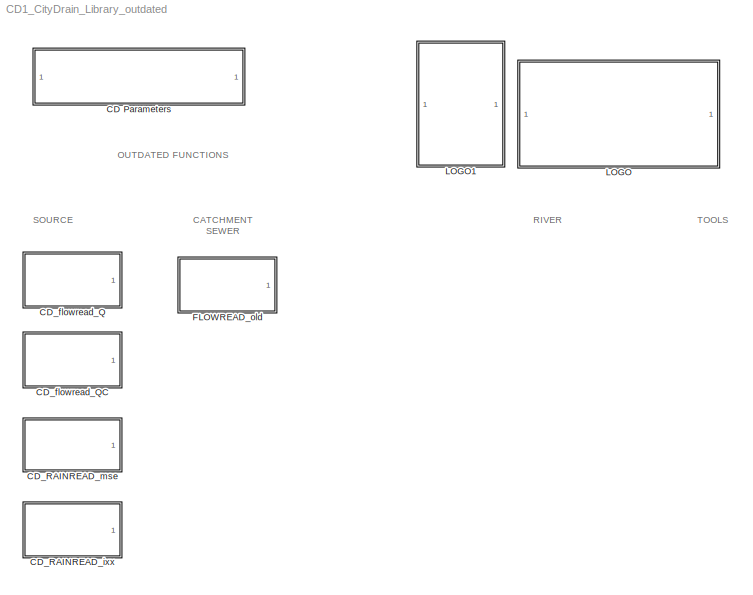
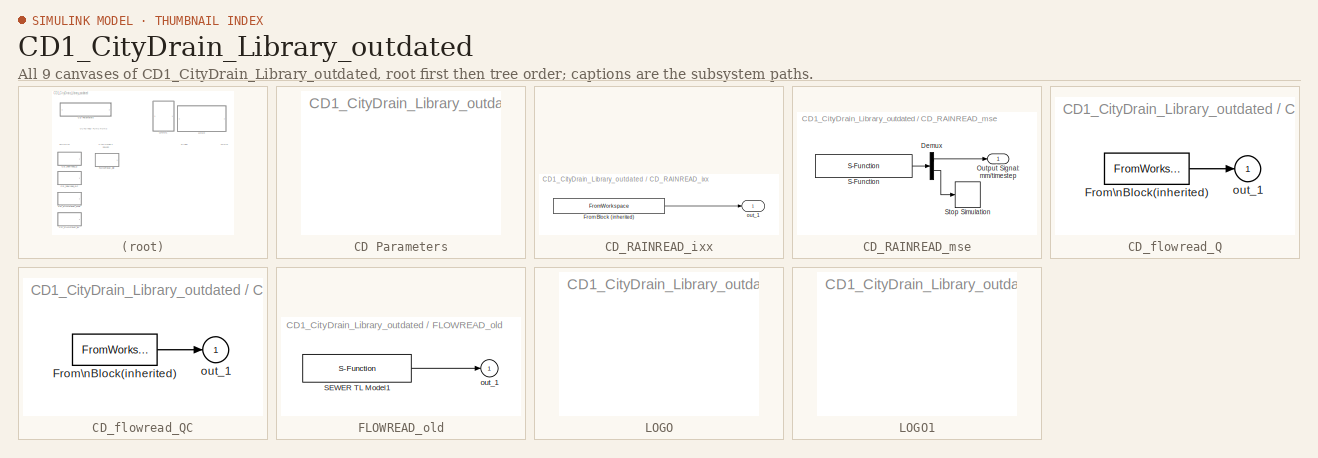
[diagram: thumbnail index - all 9 canvases of the model, root first then tree order]
MODEL CD1_CityDrain_Library_outdated
KIND model
CONFIG AbsTol = auto
CONFIG FixedStep = 300
CONFIG MaxStep = auto
CONFIG MinStep = auto
CONFIG RelTol = 1e-3
CONFIG Solver = FixedStepDiscrete
CONFIG SolverMode = Auto
CONFIG StartTime = 0
CONFIG StopTime = 36000
BLOCK [SubSystem] CD Parameters
  MaskCallbackString = ||
  MaskDescription = Block that sets the global parameters required in City Drain 1.0. Following paramters are set without user's input:\n\n- 'Solver' --> 'FixedStepDiscrete'\n- 'TimeSaveName' --> 'cd_time'\n- 'Decimation' --> '1'\n- 'LimitDataPoints' -->  'off'
  MaskDisplay = \nplot(0,0,100,100);\n\ntext(50,65,'CITY DRAIN','HorizontalAlignment','center');\ntext(50,35,'PARAMETERS','HorizontalAlignment','center');\n\n\nimage(imread('CityDrain_SimParam.jpg'))\n\n
  MaskEnableString = on,on,on
  MaskIconFrame = on
  MaskIconOpaque = on
  MaskIconRotate = none
  MaskIconUnits = autoscale
  MaskInitialization = % toplevel systems' name --> Plant file name;\ntls=bdroot(gcb); \nset_param(tls, 'Solver', 'FixedStepDiscrete'); \nset_param(tls, 'TimeSaveName', 'cd_time');\nset_param(tls, 'Decimation', '1');\nset_param(tls, 'LimitDataPoints', 'off');\nset_param(tls, 'ScreenColor', 'white');\n\ntstep_char=num2str(t_step); % Setting the discrete time step\nset_param(tls, 'FixedStep', tstep_char); \n\ntstart_char=...<+182ch>
  MaskPromptString = Sampling Time [s]|Start Time [s]|Stop Time [s]
  MaskStyleString = edit,edit,edit
  MaskToolTipString = on,on,on
  MaskTunableValueString = on,on,on
  MaskType = City Drain 1.0 - Simulation parameters
  MaskValueString = 300|0|36000
  MaskVarAliasString = ,,
  MaskVariables = t_step=@1;t_start=@2;t_stop=@3;
  MaskVisibilityString = on,on,on
  Ports = []
  TreatAsAtomicUnit = off
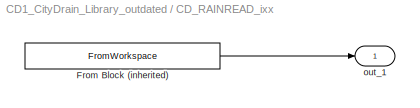
BLOCK [SubSystem] CD_RAINREAD_ixx
  MaskDescription = Read raindata from ASCII File in ixx format. \n\nTimesteps in the data must match the simulation time steps !!\n\nUsed function:\nCD1_mfun_rainread_ixx.m
  MaskDisplay = plot(0,0,100,100);\ntext(35,75,'ixx-format');\ntext(60,40,'RAIN');\ntext(60,20,'READ');\n\nplot(\n[5 10 10 15 15 20 20 25 25 30 30 40 40 45],\n[0 0 20 20 40 40 60 60 30 30 0 0 0 0]+20);
  MaskEnableString = on
  MaskIconFrame = on
  MaskIconOpaque = on
  MaskIconRotate = none
  MaskIconUnits = autoscale
  MaskInitialization = % reading the toplevel systems' name \n% --> Plant file name;\ntls=bdroot(gcb); \n% Obtaining the fixed sampling time\nt_samp_char=get_param(tls, 'FixedStep');\n% Convertion to numeric value\nt_sample = str2num(t_samp_char); \n
  MaskPromptString = Inputfile
  MaskStyleString = edit
  MaskToolTipString = on
  MaskTunableValueString = on
  MaskType = Rain Read: ixx-format
  MaskValueString = 'Rain_ixx_1980_2m_summer.ixx'
  MaskVariables = file0=@1;
  MaskVisibilityString = on
  Ports = [0, 1]
  ShowPortLabels = off
  TreatAsAtomicUnit = off
BLOCK [FromWorkspace] CD_RAINREAD_ixx/From Block  (inherited)
  OutputAfterFinalValue = Setting to zero
  SampleTime = t_sample
  VariableName = CD1_mfun_rainread_ixx_old(file0)
BLOCK [Outport] CD_RAINREAD_ixx/out_1
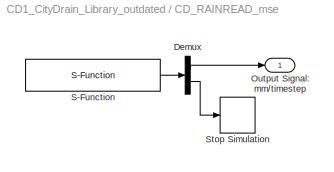
BLOCK [SubSystem] CD_RAINREAD_mse
  MaskDescription = Reads rain data from the specified  file in mse - format (modified DHI Mouse format).\nPrecipitation given in [1000*mm/sec] is converted to discrete volumetric values in [mm/timestep]. Simulation is stopped with last recorded precipitation. \n\nTimesteps in the data must match the simulation time steps !!\n\nRequired time steps for sampling are inherited from global setting.
  MaskDisplay = plot(0,0,100,100);\ntext(35,75,'mse-format');\ntext(60,40,'RAIN');\ntext(60,20,'READ');\n\nplot(\n[5 10 10 15 15 20 20 25 25 30 30 40 40 45],\n[0 0 20 20 40 40 60 60 30 30 0 0 0 0]+20);
  MaskEnableString = on
  MaskIconFrame = on
  MaskIconOpaque = on
  MaskIconRotate = none
  MaskIconUnits = autoscale
  MaskInitialization = % reading the toplevel systems' name \n% --> Plant file name;\ntls=bdroot(gcb); \n% Obtaining the fixed sampling time\nt_samp_char=get_param(tls, 'FixedStep');\n% Convertion to numeric value\ntstep = str2num(t_samp_char);
  MaskPromptString = File Name 'Raindata.mse'
  MaskStyleString = edit
  MaskToolTipString = on
  MaskTunableValueString = on
  MaskType = RainRead: mse-format
  MaskValueString = 'Rain_mse_1981.mse'
  MaskVariables = filename=@1;
  MaskVisibilityString = on
  Ports = [0, 1]
  TreatAsAtomicUnit = off
BLOCK [Demux] CD_RAINREAD_mse/Demux
  Outputs = 2
  Ports = [1, 2]
BLOCK [Outport] CD_RAINREAD_mse/Output Signal: mm//timestep
BLOCK [S-Function] CD_RAINREAD_mse/S-Function
  FunctionName = CD1_sfun_rainread_mse_old
  MaskIconFrame = on
  MaskIconOpaque = on
  MaskIconRotate = none
  MaskIconUnits = autoscale
  Parameters = filename,tstep
  Ports = [0, 1]
BLOCK [Stop] CD_RAINREAD_mse/Stop Simulation
BLOCK [SubSystem] CD_flowread_Q
  MaskDescription = Reads flowdata (Q) from ascii file. \n\nTimesteps in the data must match the simulation time steps !!\n\nUsed function: CD1_mfun_flowread_Q.m
  MaskDisplay = plot(-x/z*0.1,(n-0.2)*m,x+x/z*0.1,m+m/10,table(:,1),table(:,h(2)),x/z*[-0.1,0.05],[n*m,(n-0.2)*m])
  MaskEnableString = on
  MaskIconFrame = on
  MaskIconOpaque = on
  MaskIconRotate = none
  MaskIconUnits = autoscale
  MaskInitialization = table=CD1_mfun_flowread_Q_old(table0); \nh=size(table);m=max(table(:,h(2)));\nn=min(table(:,h(2)))/(m+eps);x=max(table(:,1));\nz=1.643;\n\n% reading the toplevel systems' name \n% --> Plant file name;\ntls=bdroot(gcb); \n% Obtaining the fixed sampling time\nt_samp_char=get_param(tls, 'FixedStep');\n% Convertion to numeric value\nt_sample = str2num(t_samp_char);
  MaskPromptString = File cotaining matrix of hydrograph
  MaskStyleString = edit
  MaskToolTipString = on
  MaskTunableValueString = on
  MaskType = CD1_mfun_flowread_Q.m
  MaskValueString = 'Input_Flow_Q_01.txt'
  MaskVariables = table0=@1;
  MaskVisibilityString = on
  Ports = [0, 1]
  ShowPortLabels = off
  TreatAsAtomicUnit = off
BLOCK [FromWorkspace] CD_flowread_Q/From\nBlock(inherited)
  Interpolate = off
  OutputAfterFinalValue = Setting to zero
  SampleTime = t_sample
  VariableName = table
BLOCK [Outport] CD_flowread_Q/out_1
BLOCK [SubSystem] CD_flowread_QC
  MaskCallbackString = |
  MaskDescription = Reads flowdata (Q) and substance concentration (Ci) associated from ascii file. \n\nTimesteps in the data must match the simulation time steps !!\n\nUsed function: CD1_mfun_flowread_QC.m
  MaskDisplay = \nplot(0,0,100,100);\n\ntext(20,30,'Flowread');\n\ntext(20,10,'Q and C');\n\n\nplot(\n[5 20 20 30 30 40 40 50 50 60 60 70 70 70],\n[0 0 10 10 20 20 40 40 20 20 0 0 0 0]+60);\nplot(\n[5 20 20 30 30 40 40 50 50 60 60 70 70 70],\n[0 0 10 10 20 20 30 30 10 10 0 0 0 0]+40);
  MaskEnableString = on,on
  MaskIconFrame = on
  MaskIconOpaque = on
  MaskIconRotate = none
  MaskIconUnits = autoscale
  MaskInitialization = table=CD1_mfun_flowread_QC_old(table0,n_comp);\n\nh=size(table);m=max(table(:,h(2)));\nn=min(table(:,h(2)))/(m+eps);x=max(table(:,1));\nz=1.643;\n\n% reading the toplevel systems' name \n% --> Plant file name;\ntls=bdroot(gcb); \n% Obtaining the fixed sampling time\nt_samp_char=get_param(tls, 'FixedStep');\n% Convertion to numeric value\nt_sample = str2num(t_samp_char);
  MaskPromptString = Filename|Number of pollutants n
  MaskStyleString = edit,edit
  MaskToolTipString = on,on
  MaskTunableValueString = on,on
  MaskType = CD1_mfun_flowread_QC
  MaskValueString = 'Input_Flow_QC_01.txt'|1
  MaskVarAliasString = ,
  MaskVariables = table0=@1;n_comp=@2;
  MaskVisibilityString = on,on
  Ports = [0, 1]
  ShowPortLabels = off
  TreatAsAtomicUnit = off
BLOCK [FromWorkspace] CD_flowread_QC/From\nBlock(inherited)
  Interpolate = off
  OutputAfterFinalValue = Setting to zero
  SampleTime = t_sample
  VariableName = table
BLOCK [Outport] CD_flowread_QC/out_1
BLOCK [SubSystem] FLOWREAD_old
  MaskCallbackString = ||
  MaskDescription = Reads flowdata (Q) and substance concentration (Ci) associated from ascii file. \n\nUsed function: CD1_sfun_flowread.m
  MaskDisplay = \nplot(0,0,100,100);\n\ntext(50,20,'FLOWREAD_old','HorizontalAlignment','center');\n\nplot(\n[5 10 10 15 15 20 20 25 25 30 30 35 35 40],\n[0 0 10 10 20 20 40 40 20 20 0 0 0 0]+50);\nplot(\n[5 10 15 20 25 30 35 ]+50,\n[0 5 10 15 30 20 0]+50);
  MaskEnableString = on,on,on
  MaskIconFrame = on
  MaskIconOpaque = on
  MaskIconRotate = none
  MaskIconUnits = autoscale
  MaskInitialization = table=CD1_mfun_flowread(table0);\n\n\n% reading the toplevel systems' name \n% --> Plant file name;\ntls=bdroot(gcb); \n% Obtaining the fixed sampling time\nt_samp_char=get_param(tls, 'FixedStep');\n% Convertion to numeric value\ntstep = str2num(t_samp_char); \n
  MaskPromptString = Filename|Data type|Cylic repitation
  MaskStyleString = edit,popup(Composite sample|Grab sample),checkbox
  MaskToolTipString = on,on,on
  MaskTunableValueString = on,on,on
  MaskType = CD1_flowread
  MaskValueString = 'Input_CSO_QC_Test_3.txt'|Grab sample|on
  MaskVarAliasString = ,,
  MaskVariables = table0=@1;dtype=&2;crep=&3;
  MaskVisibilityString = on,on,on
  Ports = [0, 1]
  ShowPortLabels = off
  TreatAsAtomicUnit = off
BLOCK [S-Function] FLOWREAD_old/SEWER TL Model1
  FunctionName = CD1_sfun_flowread_old
  MaskIconFrame = on
  MaskIconOpaque = on
  MaskIconRotate = none
  MaskIconUnits = autoscale
  Parameters = dtype,crep,table,tstep
  Ports = [0, 1]
BLOCK [Outport] FLOWREAD_old/out_1
BLOCK [SubSystem] LOGO
  MaskDescription = Displays the City Drain Logo in Color\n\nSource file: \nCity Drain Logo_c_small.tif
  MaskDisplay = image(imread('CityDrainLogo_C1.jpg'));\ntext(10,50,'CITY DRAIN 1.0','HorizontalAlignment','left');\ntext(10,20,'Logo could not be displayed','HorizontalAlignment','left');
  MaskHelp = Displays the City Drain Logo in Color\n\nSource file: \nCity Drain Logo_c_small.tif
  MaskIconFrame = on
  MaskIconOpaque = on
  MaskIconRotate = none
  MaskIconUnits = autoscale
  MaskType = LOGO CITY DRAIN
  Ports = []
  TreatAsAtomicUnit = off
BLOCK [SubSystem] LOGO1
  MaskDescription = Displays the City Drain Logo in Color\n\nSource file: \nCityDrainLogo_C1.jpg
  MaskDisplay = image(imread('LOGO_IUT4C.jpg'));\ntext(10,50,'IUT, University of Innsbruck','HorizontalAlignment','left');\ntext(10,20,'Logo could not be displayed','HorizontalAlignment','left');
  MaskIconFrame = on
  MaskIconOpaque = on
  MaskIconRotate = none
  MaskIconUnits = autoscale
  MaskType = LOGO CITY DRAIN
  Ports = []
  TreatAsAtomicUnit = off
ANNOTATION (root): CATCHMENT\nSEWER
ANNOTATION (root): OUTDATED FUNCTIONS
ANNOTATION (root): RIVER
ANNOTATION (root): SOURCE
ANNOTATION (root): TOOLS
LINE CD_RAINREAD_ixx/From Block  (inherited):1 -> CD_RAINREAD_ixx/out_1:1
LINE CD_RAINREAD_mse/Demux:1 -> CD_RAINREAD_mse/Output Signal: mm//timestep:1
LINE CD_RAINREAD_mse/Demux:2 -> CD_RAINREAD_mse/Stop Simulation:1
LINE CD_RAINREAD_mse/S-Function:1 -> CD_RAINREAD_mse/Demux:1
LINE CD_flowread_Q/From\nBlock(inherited):1 -> CD_flowread_Q/out_1:1
LINE CD_flowread_QC/From\nBlock(inherited):1 -> CD_flowread_QC/out_1:1
LINE FLOWREAD_old/SEWER TL Model1:1 -> FLOWREAD_old/out_1:1
